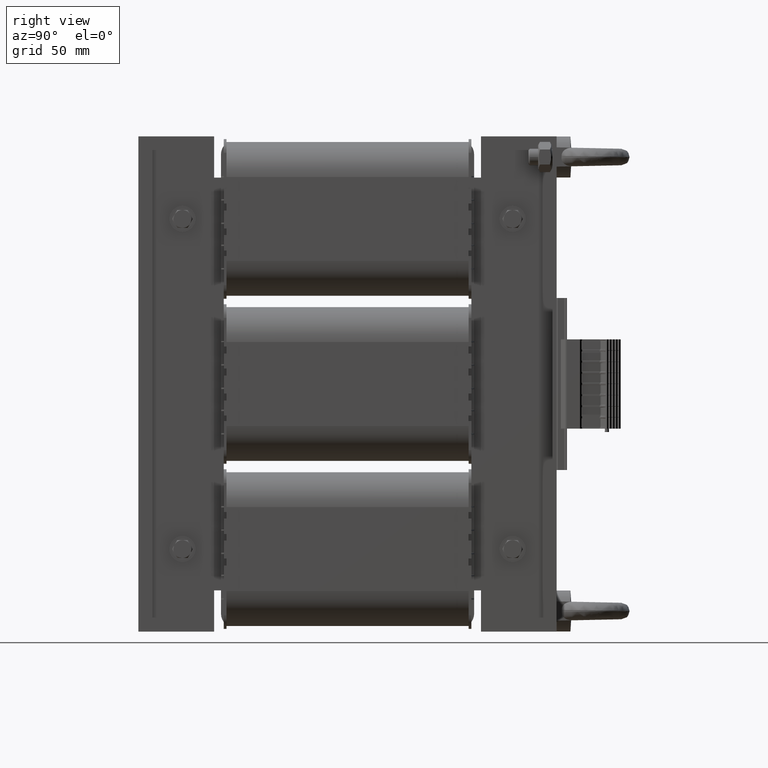
[diagram: clean part render]
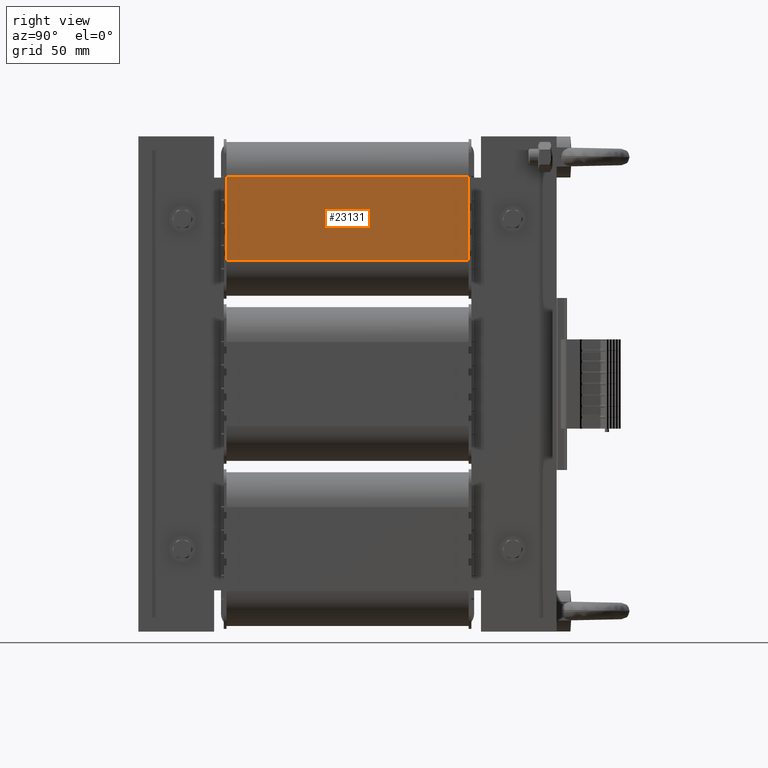
[diagram: same view with one face highlighted and labeled with its STEP entity id]
A machine part, right view. The second image highlights one B-rep face of the part: STEP entity #23131.
In plain terms, the highlighted planar face has unit normal (1, 0, -0).
Its self-contained STEP definition (entity closure, byte-faithful):
#2055=FACE_OUTER_BOUND('',#3302,.T.);
#3302=EDGE_LOOP('',(#15630,#15631,#15632,#15633,#15634,#15635,#15636,#15637,
#15638,#15639,#15640,#15641,#15642,#15643,#15644,#15645,#15646,#15647,#15648,
#15649));
#4611=LINE('',#33405,#7247);
#4613=LINE('',#33411,#7249);
#4617=LINE('',#33420,#7253);
#4621=LINE('',#33429,#7257);
#4645=LINE('',#33483,#7281);
#4649=LINE('',#33492,#7285);
#4653=LINE('',#33501,#7289);
#4657=LINE('',#33510,#7293);
#4680=LINE('',#33556,#7316);
#4681=LINE('',#33560,#7317);
#4682=LINE('',#33562,#7318);
#4683=LINE('',#33563,#7319);
#4684=LINE('',#33564,#7320);
#4685=LINE('',#33565,#7321);
#4686=LINE('',#33566,#7322);
#4687=LINE('',#33567,#7323);
#4688=LINE('',#33568,#7324);
#4689=LINE('',#33569,#7325);
#4690=LINE('',#33570,#7326);
#4691=LINE('',#33571,#7327);
#7247=VECTOR('',#26777,10.);
#7249=VECTOR('',#26781,10.);
#7253=VECTOR('',#26787,10.);
#7257=VECTOR('',#26793,10.);
#7281=VECTOR('',#26829,10.);
#7285=VECTOR('',#26835,10.);
#7289=VECTOR('',#26841,10.);
#7293=VECTOR('',#26847,10.);
#7316=VECTOR('',#26886,10.);
#7317=VECTOR('',#26891,10.);
#7318=VECTOR('',#26892,10.);
#7319=VECTOR('',#26893,10.);
#7320=VECTOR('',#26894,10.);
#7321=VECTOR('',#26895,10.);
#7322=VECTOR('',#26896,10.);
#7323=VECTOR('',#26897,10.);
#7324=VECTOR('',#26898,10.);
#7325=VECTOR('',#26899,10.);
#7326=VECTOR('',#26900,10.);
#7327=VECTOR('',#26901,10.);
#9873=VERTEX_POINT('',#33399);
#9875=VERTEX_POINT('',#33403);
#9876=VERTEX_POINT('',#33407);
#9878=VERTEX_POINT('',#33410);
#9880=VERTEX_POINT('',#33416);
#9882=VERTEX_POINT('',#33419);
#9884=VERTEX_POINT('',#33425);
#9886=VERTEX_POINT('',#33428);
#9909=VERTEX_POINT('',#33480);
#9910=VERTEX_POINT('',#33482);
#9913=VERTEX_POINT('',#33489);
#9914=VERTEX_POINT('',#33491);
#9917=VERTEX_POINT('',#33498);
#9918=VERTEX_POINT('',#33500);
#9921=VERTEX_POINT('',#33507);
#9922=VERTEX_POINT('',#33509);
#9936=VERTEX_POINT('',#33553);
#9937=VERTEX_POINT('',#33555);
#9938=VERTEX_POINT('',#33559);
#9939=VERTEX_POINT('',#33561);
#12107=EDGE_CURVE('',#9875,#9873,#4611,.T.);
#12109=EDGE_CURVE('',#9876,#9878,#4613,.T.);
#12113=EDGE_CURVE('',#9880,#9882,#4617,.T.);
#12117=EDGE_CURVE('',#9884,#9886,#4621,.T.);
#12141=EDGE_CURVE('',#9910,#9909,#4645,.T.);
#12145=EDGE_CURVE('',#9914,#9913,#4649,.T.);
#12149=EDGE_CURVE('',#9918,#9917,#4653,.T.);
#12153=EDGE_CURVE('',#9922,#9921,#4657,.T.);
#12179=EDGE_CURVE('',#9937,#9936,#4680,.T.);
#12181=EDGE_CURVE('',#9938,#9884,#4681,.T.);
#12182=EDGE_CURVE('',#9939,#9938,#4682,.T.);
#12183=EDGE_CURVE('',#9910,#9939,#4683,.T.);
#12184=EDGE_CURVE('',#9914,#9909,#4684,.T.);
#12185=EDGE_CURVE('',#9918,#9913,#4685,.T.);
#12186=EDGE_CURVE('',#9922,#9917,#4686,.T.);
#12187=EDGE_CURVE('',#9937,#9921,#4687,.T.);
#12188=EDGE_CURVE('',#9873,#9936,#4688,.T.);
#12189=EDGE_CURVE('',#9878,#9875,#4689,.T.);
#12190=EDGE_CURVE('',#9882,#9876,#4690,.T.);
#12191=EDGE_CURVE('',#9886,#9880,#4691,.T.);
#15630=ORIENTED_EDGE('',*,*,#12181,.F.);
#15631=ORIENTED_EDGE('',*,*,#12182,.F.);
#15632=ORIENTED_EDGE('',*,*,#12183,.F.);
#15633=ORIENTED_EDGE('',*,*,#12141,.T.);
#15634=ORIENTED_EDGE('',*,*,#12184,.F.);
#15635=ORIENTED_EDGE('',*,*,#12145,.T.);
#15636=ORIENTED_EDGE('',*,*,#12185,.F.);
#15637=ORIENTED_EDGE('',*,*,#12149,.T.);
#15638=ORIENTED_EDGE('',*,*,#12186,.F.);
#15639=ORIENTED_EDGE('',*,*,#12153,.T.);
#15640=ORIENTED_EDGE('',*,*,#12187,.F.);
#15641=ORIENTED_EDGE('',*,*,#12179,.T.);
#15642=ORIENTED_EDGE('',*,*,#12188,.F.);
#15643=ORIENTED_EDGE('',*,*,#12107,.F.);
#15644=ORIENTED_EDGE('',*,*,#12189,.F.);
#15645=ORIENTED_EDGE('',*,*,#12109,.F.);
#15646=ORIENTED_EDGE('',*,*,#12190,.F.);
#15647=ORIENTED_EDGE('',*,*,#12113,.F.);
#15648=ORIENTED_EDGE('',*,*,#12191,.F.);
#15649=ORIENTED_EDGE('',*,*,#12117,.F.);
#22250=PLANE('',#24725);
#23131=ADVANCED_FACE('',(#2055),#22250,.T.);
#24725=AXIS2_PLACEMENT_3D('',#33558,#26889,#26890);
#26777=DIRECTION('',(-1.45603019622832E-16,0.,-1.));
#26781=DIRECTION('',(-1.45603019622832E-16,0.,-1.));
#26787=DIRECTION('',(-1.45603019622832E-16,0.,-1.));
#26793=DIRECTION('',(-1.45603019622832E-16,0.,-1.));
#26829=DIRECTION('',(-1.45603019622832E-16,0.,-1.));
#26835=DIRECTION('',(-1.45603019622832E-16,0.,-1.));
#26841=DIRECTION('',(-1.45603019622832E-16,0.,-1.));
#26847=DIRECTION('',(-1.45603019622832E-16,0.,-1.));
#26886=DIRECTION('',(0.,1.,0.));
#26889=DIRECTION('center_axis',(1.,0.,-1.45603019622832E-16));
#26890=DIRECTION('ref_axis',(-1.45603019622832E-16,0.,-1.));
#26891=DIRECTION('',(-1.45603019622832E-16,0.,-1.));
#26892=DIRECTION('',(0.,1.,0.));
#26893=DIRECTION('',(1.45603019622832E-16,0.,1.));
#26894=DIRECTION('',(1.45603019622832E-16,0.,1.));
#26895=DIRECTION('',(1.45603019622832E-16,0.,1.));
#26896=DIRECTION('',(1.45603019622832E-16,0.,1.));
#26897=DIRECTION('',(1.45603019622832E-16,0.,1.));
#26898=DIRECTION('',(-1.45603019622832E-16,0.,-1.));
#26899=DIRECTION('',(-1.45603019622832E-16,0.,-1.));
#26900=DIRECTION('',(-1.45603019622832E-16,0.,-1.));
#26901=DIRECTION('',(-1.45603019622832E-16,0.,-1.));
#33399=CARTESIAN_POINT('',(54.8691630029813,178.,-27.));
#33403=CARTESIAN_POINT('',(54.8691630029813,178.,-23.));
#33405=CARTESIAN_POINT('',(54.8691630029814,178.,15.2500000000124));
#33407=CARTESIAN_POINT('',(54.8691630029813,178.,-7.00000000000001));
#33410=CARTESIAN_POINT('',(54.8691630029813,178.,-12.));
#33411=CARTESIAN_POINT('',(54.8691630029814,178.,15.2500000000124));
#33416=CARTESIAN_POINT('',(54.8691630029814,178.,11.));
#33419=CARTESIAN_POINT('',(54.8691630029814,178.,5.99999999999999));
#33420=CARTESIAN_POINT('',(54.8691630029814,178.,15.2500000000124));
#33425=CARTESIAN_POINT('',(54.8691630029814,178.,27.));
#33428=CARTESIAN_POINT('',(54.8691630029814,178.,22.));
#33429=CARTESIAN_POINT('',(54.8691630029814,178.,15.2500000000124));
#33480=CARTESIAN_POINT('',(54.8691630029814,2.,22.));
#33482=CARTESIAN_POINT('',(54.8691630029814,2.,27.));
#33483=CARTESIAN_POINT('',(54.8691630029814,2.,30.5000000000248));
#33489=CARTESIAN_POINT('',(54.8691630029814,2.,5.99999999999999));
#33491=CARTESIAN_POINT('',(54.8691630029814,2.,11.));
#33492=CARTESIAN_POINT('',(54.8691630029814,2.,30.5000000000248));
#33498=CARTESIAN_POINT('',(54.8691630029813,2.,-12.));
#33500=CARTESIAN_POINT('',(54.8691630029813,2.,-7.00000000000001));
#33501=CARTESIAN_POINT('',(54.8691630029814,2.,30.5000000000248));
#33507=CARTESIAN_POINT('',(54.8691630029813,2.,-27.));
#33509=CARTESIAN_POINT('',(54.8691630029813,2.,-23.));
#33510=CARTESIAN_POINT('',(54.8691630029814,2.,30.5000000000248));
#33553=CARTESIAN_POINT('',(54.8691630029813,178.,-30.5000000000334));
#33555=CARTESIAN_POINT('',(54.8691630029813,2.,-30.5000000000334));
#33556=CARTESIAN_POINT('',(54.8691630029813,2.,-30.5000000000334));
#33558=CARTESIAN_POINT('Origin',(54.8691630029814,2.,30.5000000000248));
#33559=CARTESIAN_POINT('',(54.8691630029814,178.,30.5000000000248));
#33560=CARTESIAN_POINT('',(54.8691630029814,178.,15.2500000000124));
#33561=CARTESIAN_POINT('',(54.8691630029814,2.,30.5000000000248));
#33562=CARTESIAN_POINT('',(54.8691630029814,2.,30.5000000000248));
#33563=CARTESIAN_POINT('',(54.8691630029814,2.,15.2500000000124));
#33564=CARTESIAN_POINT('',(54.8691630029814,2.,15.2500000000124));
#33565=CARTESIAN_POINT('',(54.8691630029814,2.,15.2500000000124));
#33566=CARTESIAN_POINT('',(54.8691630029814,2.,15.2500000000124));
#33567=CARTESIAN_POINT('',(54.8691630029814,2.,15.2500000000124));
#33568=CARTESIAN_POINT('',(54.8691630029814,178.,15.2500000000124));
#33569=CARTESIAN_POINT('',(54.8691630029814,178.,15.2500000000124));
#33570=CARTESIAN_POINT('',(54.8691630029814,178.,15.2500000000124));
#33571=CARTESIAN_POINT('',(54.8691630029814,178.,15.2500000000124));